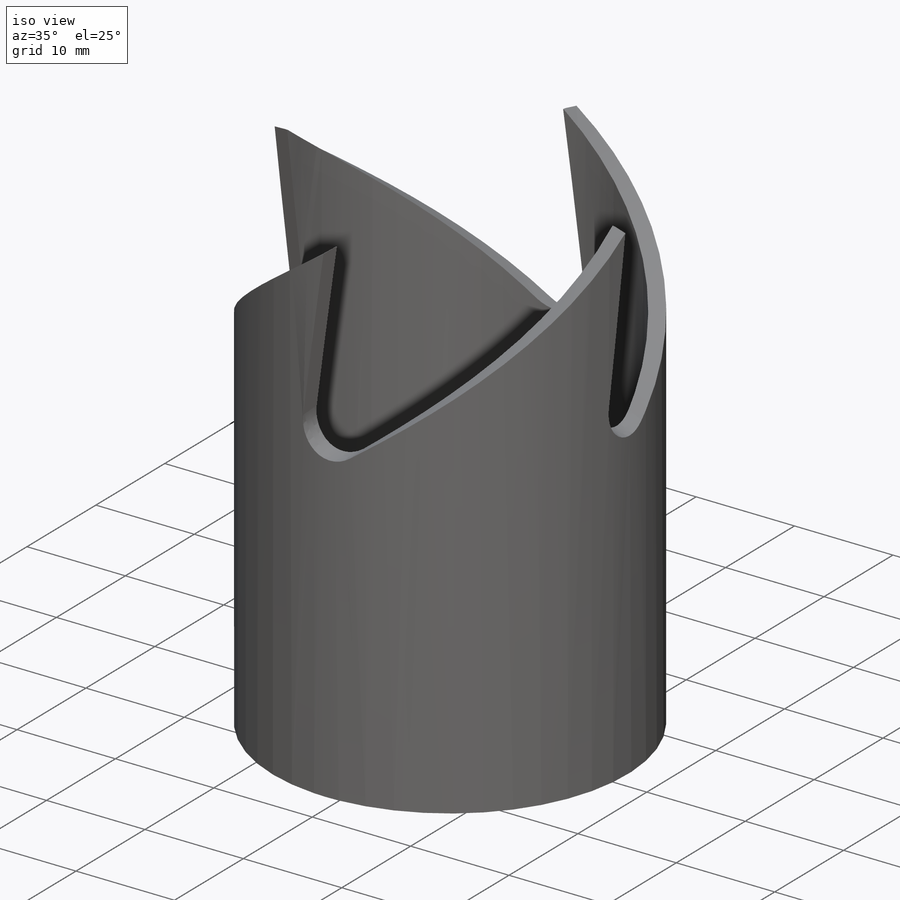
[diagram: iso view]
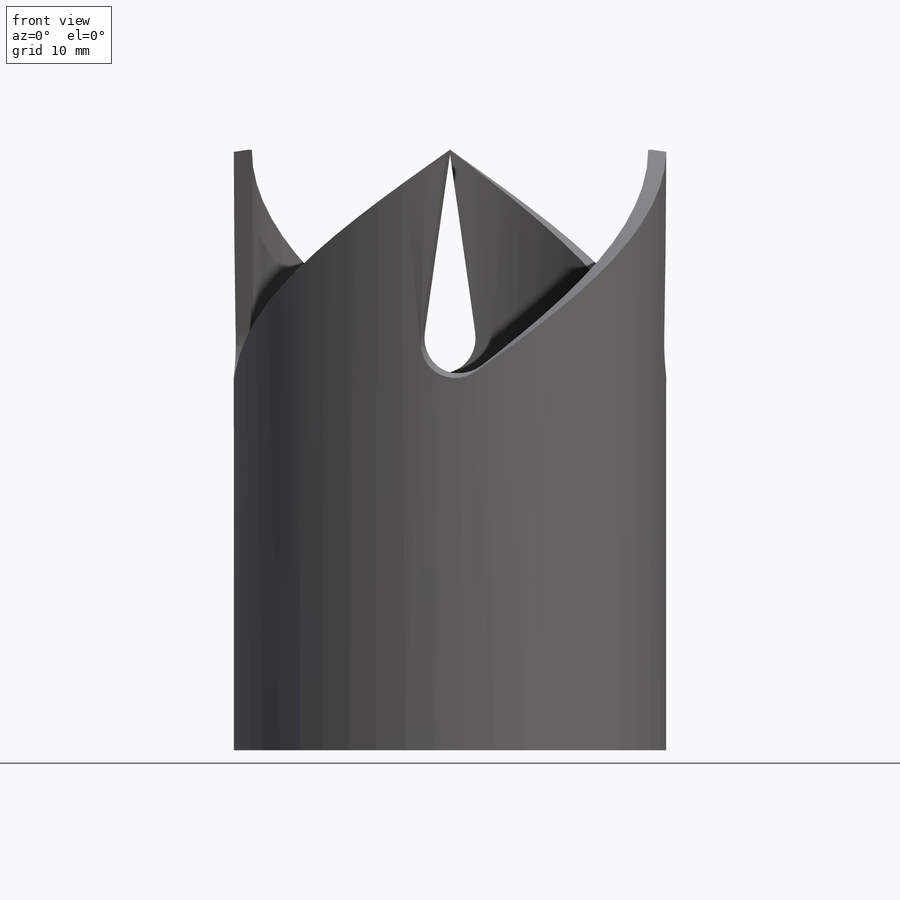
[diagram: front view]
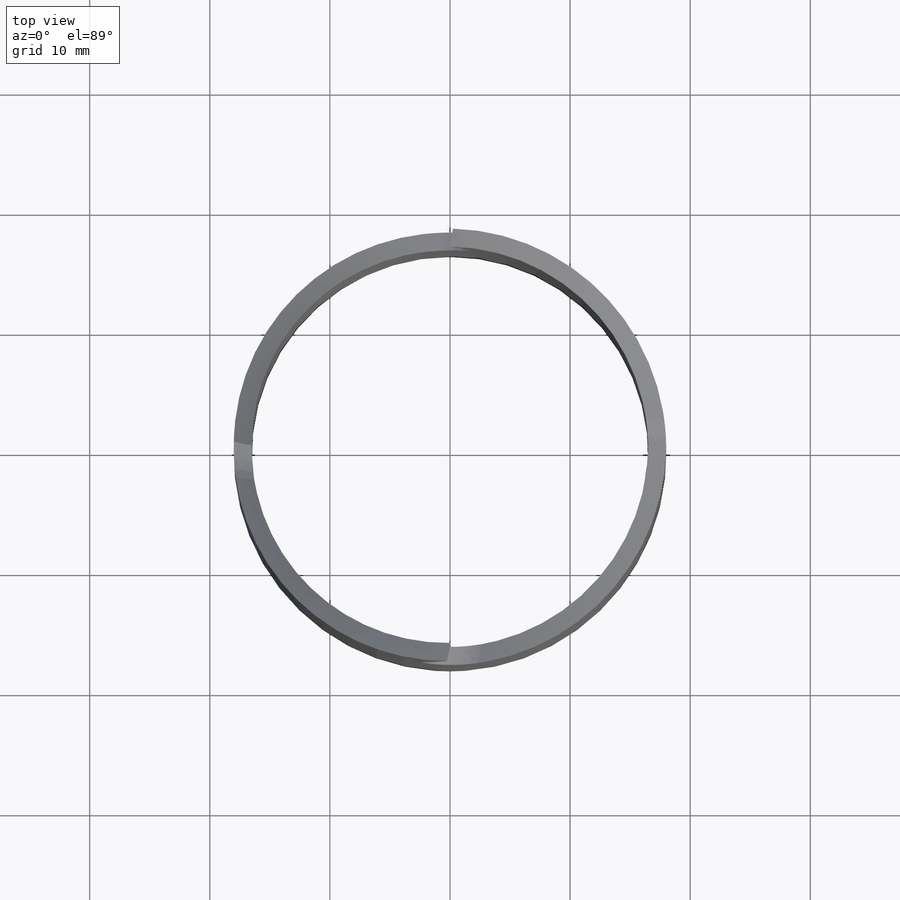
[diagram: top view]
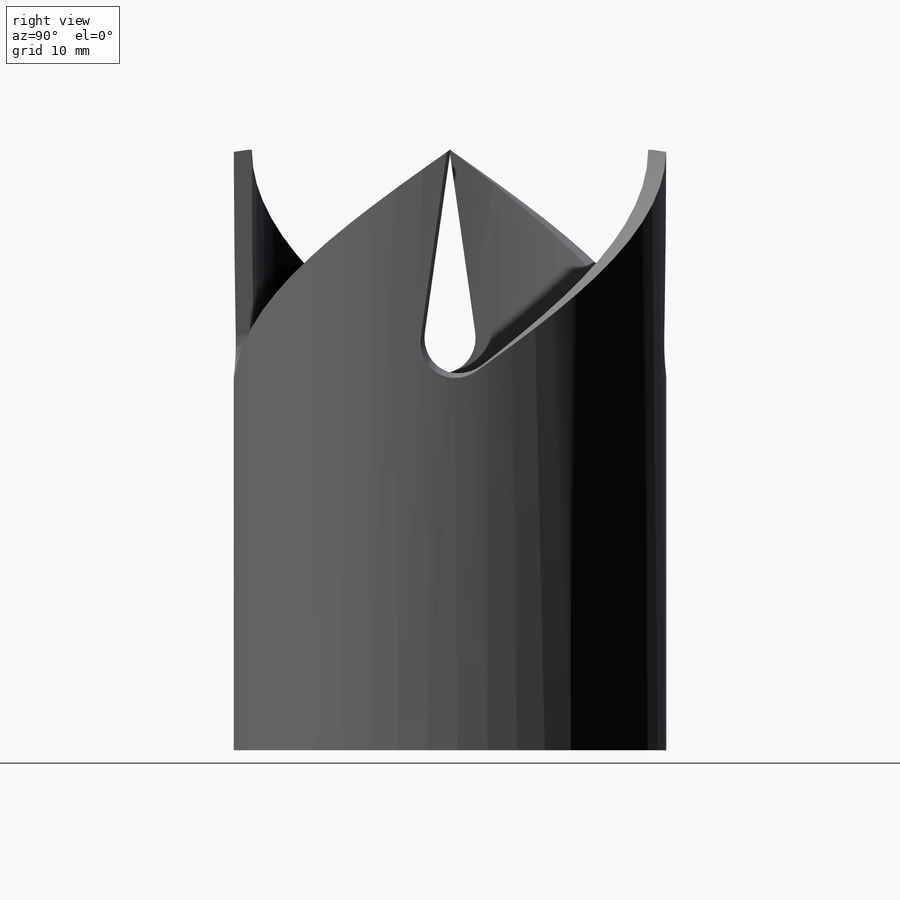
[diagram: right view]
SOLIDWORKS PART (.sldprt)
format: sldprt  version: not decoded by parser v0  size: 338,432 bytes
history: native  units: mm
features: sketch x10, plane x7, helix x4, sweep x4, material x1, extrude x1, fillet x1 (+8 scaffold rows collapsed)
feature tree (36):
  scaffold x8  (default folders/planes/origin — collapsed)
  material  "Material <nicht festgelegt>"
  plane  "Ebene vorne"
  plane  "Ebene oben"
  plane  "Ebene rechts"
  sketch  "Skizze1"  dims[D1=36.0mm D2=33.0mm]
  extrude  "Aufsatz-Linear austragen1"  Depth=50mm
  sketch  "Skizze4"
  plane  "Ebene1"
  sketch  "Skizze5"  dims[D1=2.0mm D2=25.0mm]
  sketch  "Skizze6"  dims[D1=36.0mm]
  helix  "Spirale/Helix1"  Pitch=22.4mm
  sweep  "Schnitt-Austragung1"
  plane  "Ebene2"
  sketch  "Skizze7"  dims[D1=2.0mm D2=25.0mm]
  sketch  "Skizze8"  dims[D1=36.0mm]
  helix  "Spirale/Helix2"  Pitch=22.4mm
  sweep  "Schnitt-Austragung2"
  plane  "Ebene3"
  sketch  "Skizze9"  dims[c1.D1=25.0mm c1.D2=2.0mm c2.D1=2.0mm c2.D2=25.0mm]
  sketch  "Skizze10"  dims[D1=36.0mm]
  helix  "Spirale/Helix3"  Pitch=22.4mm
  sweep  "Schnitt-Austragung3"
  plane  "Ebene4"
  sketch  "Skizze11"  dims[D1=2.0mm D2=25.0mm]
  sketch  "Skizze12"  dims[D1=36.0mm]
  helix  "Spirale/Helix4"  Pitch=22.4mm
  sweep  "Schnitt-Austragung4"
  fillet  "Verrundung1"  Radius=3mm
decode coverage: 15 of 20 modeling features carry decoded parameters
summary: profile_refs inferred from adjacent sketches, not decoded
note: suppression state not decoded; provenance and decode notes live in map.json
